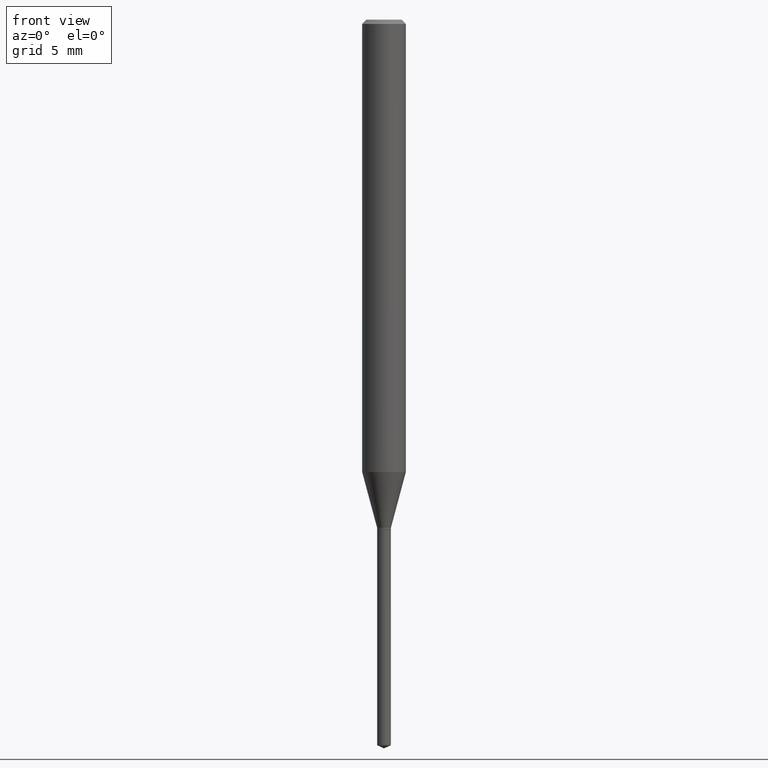
[diagram: clean part render]
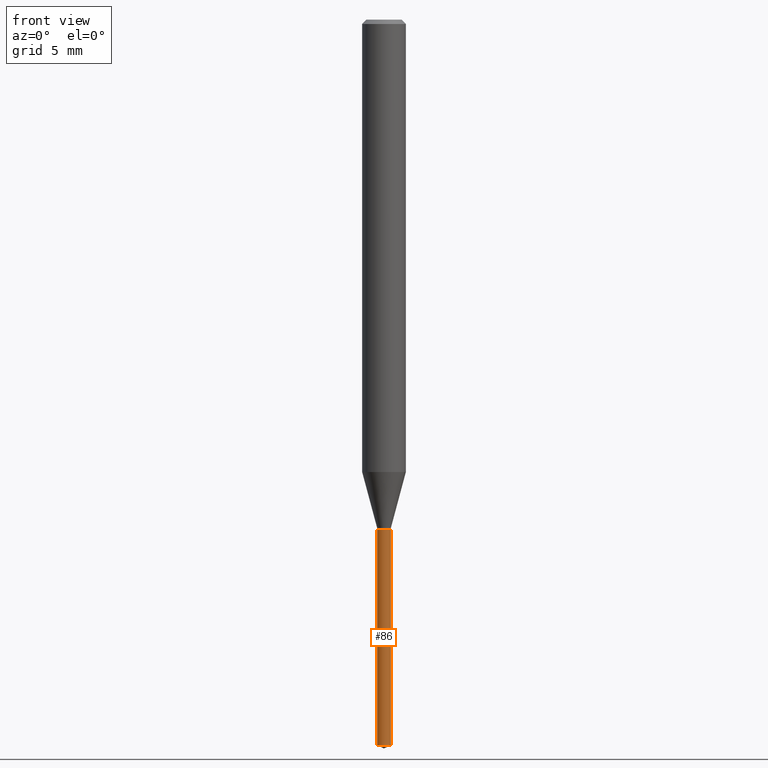
[diagram: same view with one face highlighted and labeled with its STEP entity id]
A machine part, front view. The second image highlights one B-rep face of the part: STEP entity #86.
In plain terms, the highlighted cylindrical surface (edge-blend (fillet) strip) has radius 0.475 mm, axis along (-0, 0, 1).
Its self-contained STEP definition (entity closure, byte-faithful):
#13 = AXIS2_PLACEMENT_3D ( 'NONE', #19, #458, #127 ) ;
#17 = VERTEX_POINT ( 'NONE', #203 ) ;
#19 = CARTESIAN_POINT ( 'NONE',  ( 3.370834202445593086E-29, -4.812657877461392732E-15, -1.378400000000000292 ) ) ;
#27 = CIRCLE ( 'NONE', #287, 0.01870000000000000134 ) ;
#39 = CARTESIAN_POINT ( 'NONE',  ( -0.01869999999999999787, -6.711409710695447924E-15, -1.960280046792501452 ) ) ;
#68 = ORIENTED_EDGE ( 'NONE', *, *, #480, .T. ) ;
#72 = EDGE_CURVE ( 'NONE', #73, #17, #122, .T. ) ;
#73 = VERTEX_POINT ( 'NONE', #460 ) ;
#85 = CARTESIAN_POINT ( 'NONE',  ( 0.01870000000000000134, -4.943239279534125932E-15, -1.378400000000000292 ) ) ;
#86 = ADVANCED_FACE ( 'NONE', ( #239 ), #420, .T. ) ;
#93 = DIRECTION ( 'NONE',  ( -2.445468806185136597E-29, 3.491481338843145583E-15, 1.000000000000000000 ) ) ;
#109 = DIRECTION ( 'NONE',  ( -2.445468806185136597E-29, 3.491481338843145583E-15, 1.000000000000000000 ) ) ;
#111 = EDGE_CURVE ( 'NONE', #469, #73, #385, .T. ) ;
#122 = CIRCLE ( 'NONE', #227, 0.01870000000000000134 ) ;
#127 = DIRECTION ( 'NONE',  ( 1.000000000000000000, -6.982962677686274599E-15, 0.000000000000000000 ) ) ;
#128 = ORIENTED_EDGE ( 'NONE', *, *, #282, .T. ) ;
#164 = DIRECTION ( 'NONE',  ( 1.000000000000000000, -6.982962677686274599E-15, 0.000000000000000000 ) ) ;
#203 = CARTESIAN_POINT ( 'NONE',  ( 0.01870000000000000134, -4.943239279534125932E-15, -1.378400000000000292 ) ) ;
#215 = DIRECTION ( 'NONE',  ( 1.000000000000000000, -6.982962677686274599E-15, 0.000000000000000000 ) ) ;
#227 = AXIS2_PLACEMENT_3D ( 'NONE', #392, #93, #164 ) ;
#229 = CARTESIAN_POINT ( 'NONE',  ( -0.01870000000000000134, -4.679786385874254431E-15, -1.378400000000000292 ) ) ;
#239 = FACE_OUTER_BOUND ( 'NONE', #439, .T. ) ;
#245 = VECTOR ( 'NONE', #382, 39.37007874015748143 ) ;
#264 = ORIENTED_EDGE ( 'NONE', *, *, #72, .F. ) ;
#282 = EDGE_CURVE ( 'NONE', #469, #370, #27, .T. ) ;
#287 = AXIS2_PLACEMENT_3D ( 'NONE', #330, #109, #215 ) ;
#288 = CARTESIAN_POINT ( 'NONE',  ( 0.01869999999999999787, -6.974862604355320214E-15, -1.960280046792501452 ) ) ;
#330 = CARTESIAN_POINT ( 'NONE',  ( 4.793803705818202511E-29, -6.844281202282587014E-15, -1.960280046792501452 ) ) ;
#350 = ORIENTED_EDGE ( 'NONE', *, *, #111, .F. ) ;
#370 = VERTEX_POINT ( 'NONE', #288 ) ;
#382 = DIRECTION ( 'NONE',  ( -2.445468806185136877E-29, 3.491481338843145188E-15, 1.000000000000000000 ) ) ;
#384 = DIRECTION ( 'NONE',  ( -2.445468806185136877E-29, 3.491481338843145188E-15, 1.000000000000000000 ) ) ;
#385 = LINE ( 'NONE', #229, #416 ) ;
#392 = CARTESIAN_POINT ( 'NONE',  ( 3.370834202445593086E-29, -4.812657877461392732E-15, -1.378400000000000292 ) ) ;
#416 = VECTOR ( 'NONE', #384, 39.37007874015748143 ) ;
#420 = CYLINDRICAL_SURFACE ( 'NONE', #13, 0.01870000000000000134 ) ;
#439 = EDGE_LOOP ( 'NONE', ( #350, #128, #68, #264 ) ) ;
#453 = LINE ( 'NONE', #85, #245 ) ;
#458 = DIRECTION ( 'NONE',  ( -2.445468806185136597E-29, 3.491481338843145583E-15, 1.000000000000000000 ) ) ;
#460 = CARTESIAN_POINT ( 'NONE',  ( -0.01870000000000000134, -5.695598048284850783E-15, -1.378400000000000292 ) ) ;
#469 = VERTEX_POINT ( 'NONE', #39 ) ;
#480 = EDGE_CURVE ( 'NONE', #370, #17, #453, .T. ) ;